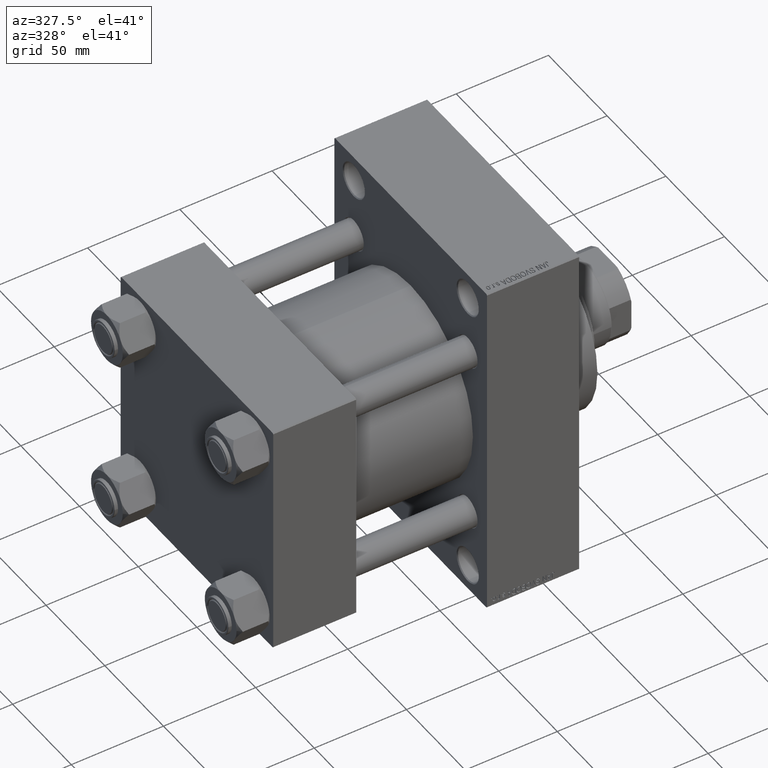
[diagram: clean part render]
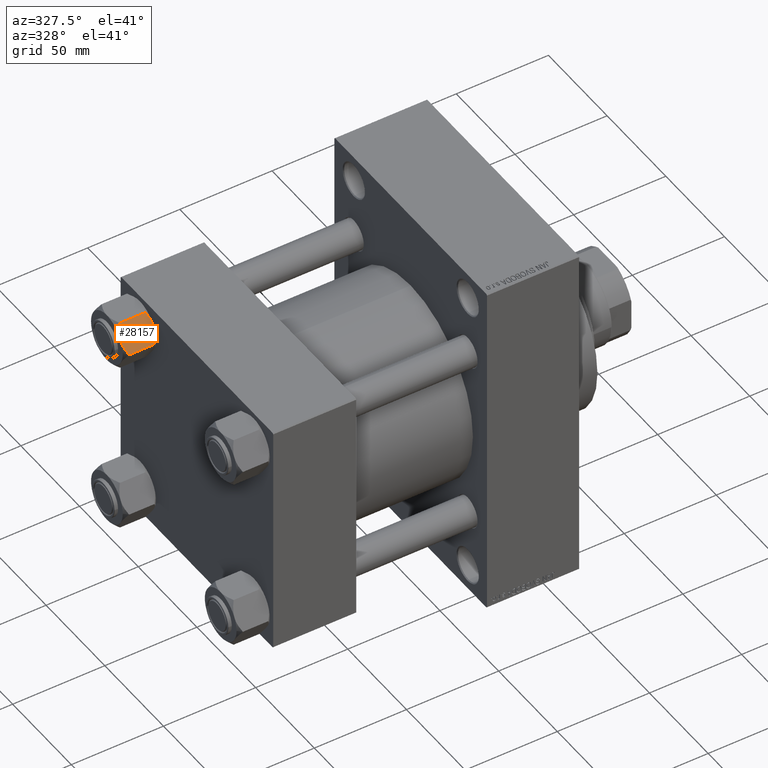
[diagram: same view with one face highlighted and labeled with its STEP entity id]
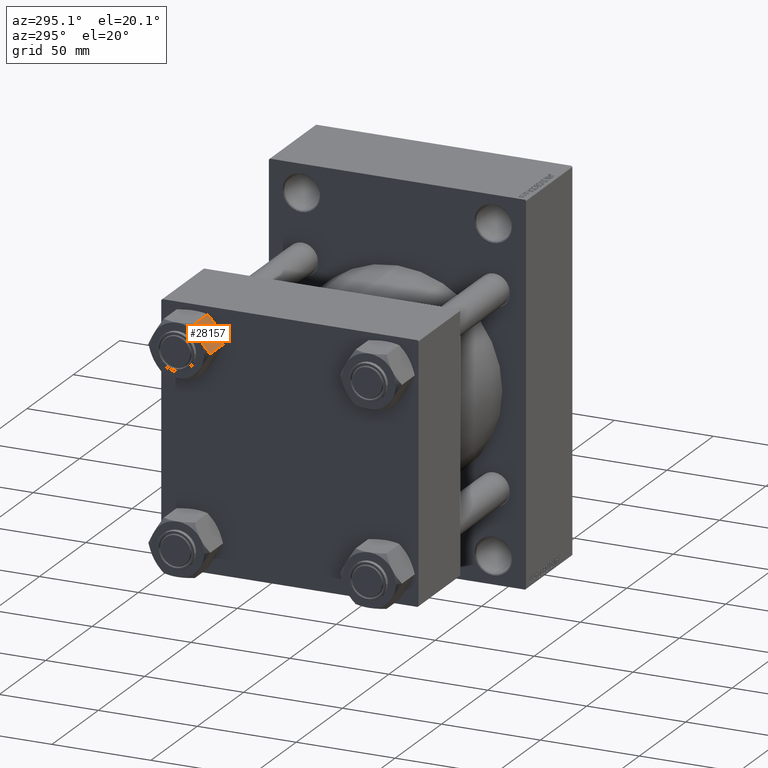
[diagram: same view with one face highlighted and labeled with its STEP entity id]
A machine part, auxiliary view. The second image highlights one B-rep face of the part: STEP entity #28157.
A second angle (auxiliary view) of the same face is appended — the face is thin or edge-on in the first view.
In plain terms, the highlighted planar face has unit normal (0, 0.866, -0.5).
Its self-contained STEP definition (entity closure, byte-faithful):
#1116 = CARTESIAN_POINT ( 'NONE',  ( -7.903528262322674358, -13.36532110482643354, -16.00000000000000000 ) ) ;
#1257 = CARTESIAN_POINT ( 'NONE',  ( -7.809999999999999609, -13.52731680711293727, -16.00000000000000000 ) ) ;
#2025 = VECTOR ( 'NONE', #11066, 999.9999999999998863 ) ;
#2159 = VECTOR ( 'NONE', #10712, 999.9999999999998863 ) ;
#2557 = CARTESIAN_POINT ( 'NONE',  ( -13.02784502466562699, -4.489744118371570281, -17.80281335400755083 ) ) ;
#2600 = VERTEX_POINT ( 'NONE', #19614 ) ;
#2749 = ORIENTED_EDGE ( 'NONE', *, *, #28592, .F. ) ;
#2792 = CARTESIAN_POINT ( 'NONE',  ( -14.30591678195076533, -2.276058899034876681, -17.05261278537718894 ) ) ;
#3045 = CARTESIAN_POINT ( 'NONE',  ( -13.04337073483128329, -4.462852799541069615, -0.2430846701012900901 ) ) ;
#3849 = CARTESIAN_POINT ( 'NONE',  ( -7.809999999999999609, -13.52731680711293727, -1.999999999999998224 ) ) ;
#4181 = FACE_OUTER_BOUND ( 'NONE', #25837, .T. ) ;
#4230 = ORIENTED_EDGE ( 'NONE', *, *, #47625, .F. ) ;
#5432 = CARTESIAN_POINT ( 'NONE',  ( -11.38181071908714692, -7.340759166634859945, -18.00000000000001421 ) ) ;
#6187 = CARTESIAN_POINT ( 'NONE',  ( -14.92760668674625002, -1.199260397376427090, -1.411989271640064825 ) ) ;
#8093 = CARTESIAN_POINT ( 'NONE',  ( -10.38662926516872353, -9.064464007571846338, -17.75691532989871746 ) ) ;
#8648 = EDGE_CURVE ( 'NONE', #12662, #26417, #11246, .T. ) ;
#9735 = CARTESIAN_POINT ( 'NONE',  ( -9.439480280627259745, -10.70497417113492311, -0.7317196846281081024 ) ) ;
#9805 = CARTESIAN_POINT ( 'NONE',  ( -12.04818928091285635, -6.186557640478051567, 9.103910117089220044E-15 ) ) ;
#9899 = VERTEX_POINT ( 'NONE', #37380 ) ;
#9949 = VERTEX_POINT ( 'NONE', #41240 ) ;
#10037 = CARTESIAN_POINT ( 'NONE',  ( -14.31545111198821552, -2.259544954993873311, -0.9142282604026915616 ) ) ;
#10072 = B_SPLINE_CURVE_WITH_KNOTS ( 'NONE', 3,
 ( #36295, #35592, #2557, #31958, #2792, #16796, #13874, #31499 ),
 .UNSPECIFIED., .F., .F.,
 ( 4, 2, 2, 4 ),
 ( 0.007890825462474436100, 0.01181022244528555712, 0.01376992093669111850, 0.01572961942809667987 ),
 .UNSPECIFIED. ) ;
#10131 = ORIENTED_EDGE ( 'NONE', *, *, #8648, .T. ) ;
#10210 = ORIENTED_EDGE ( 'NONE', *, *, #20654, .F. ) ;
#10509 = VERTEX_POINT ( 'NONE', #14538 ) ;
#10712 = DIRECTION ( 'NONE',  ( -0.4999999999999994449, 0.8660254037844390407, 0.000000000000000000 ) ) ;
#10756 = CARTESIAN_POINT ( 'NONE',  ( -7.809999999999999609, -13.52731680711293727, -18.00000000000000000 ) ) ;
#11066 = DIRECTION ( 'NONE',  ( 0.4999999999999994449, -0.8660254037844390407, 0.000000000000000000 ) ) ;
#11185 = VERTEX_POINT ( 'NONE', #36854 ) ;
#11246 = LINE ( 'NONE', #10756, #19742 ) ;
#11575 = VECTOR ( 'NONE', #44607, 999.9999999999998863 ) ;
#12662 = VERTEX_POINT ( 'NONE', #1257 ) ;
#13552 = DIRECTION ( 'NONE',  ( -0.4999999999999994449, 0.8660254037844390407, 0.000000000000000000 ) ) ;
#13874 = CARTESIAN_POINT ( 'NONE',  ( -15.22736220980736199, -0.6800686015852018818, -16.29368822085855584 ) ) ;
#14060 = EDGE_CURVE ( 'NONE', #10509, #19114, #10072, .T. ) ;
#14538 = CARTESIAN_POINT ( 'NONE',  ( -11.71500000000000874, -6.763658403556459753, -18.00000000000000000 ) ) ;
#15172 = CARTESIAN_POINT ( 'NONE',  ( -7.809999999999999609, -13.52731680711293727, -1.999999999999998224 ) ) ;
#16456 = LINE ( 'NONE', #46586, #19819 ) ;
#16686 = VECTOR ( 'NONE', #22891, 1000.000000000000000 ) ;
#16796 = CARTESIAN_POINT ( 'NONE',  ( -14.92394044919338825, -1.205610507090610461, -16.56553707812500065 ) ) ;
#17439 = CARTESIAN_POINT ( 'NONE',  ( -11.71500000000000874, -6.763658403556459753, 0.000000000000000000 ) ) ;
#17915 = CARTESIAN_POINT ( 'NONE',  ( -7.903528262322674358, -13.36532110482643354, -2.000000000000000000 ) ) ;
#18265 = CARTESIAN_POINT ( 'NONE',  ( -7.809999999999999609, -13.52731680711293727, -1.999999999999998224 ) ) ;
#19114 = VERTEX_POINT ( 'NONE', #33147 ) ;
#19614 = CARTESIAN_POINT ( 'NONE',  ( -11.71500000000000874, -6.763658403556459753, 0.000000000000000000 ) ) ;
#19742 = VECTOR ( 'NONE', #36318, 1000.000000000000000 ) ;
#19819 = VECTOR ( 'NONE', #13552, 999.9999999999998863 ) ;
#20654 = EDGE_CURVE ( 'NONE', #40377, #9899, #22417, .T. ) ;
#22417 = LINE ( 'NONE', #3849, #2025 ) ;
#22828 = CARTESIAN_POINT ( 'NONE',  ( -11.04378428799595468, -7.926238119585997666, -17.94910618364700028 ) ) ;
#22891 = DIRECTION ( 'NONE',  ( -0.000000000000000000, -0.000000000000000000, 1.000000000000000000 ) ) ;
#23883 = B_SPLINE_CURVE_WITH_KNOTS ( 'NONE', 3,
 ( #42844, #6187, #10037, #43301, #3045, #25230, #9805, #28609 ),
 .UNSPECIFIED., .F., .F.,
 ( 4, 2, 2, 4 ),
 ( 4.472842641982724416E-07, 0.003945636373369324802, 0.005918230917921887824, 0.007890825462474451713 ),
 .UNSPECIFIED. ) ;
#24655 = ORIENTED_EDGE ( 'NONE', *, *, #32840, .F. ) ;
#25230 = CARTESIAN_POINT ( 'NONE',  ( -12.38621571200405391, -5.601078687526916511, -0.05089381635300645190 ) ) ;
#25503 = B_SPLINE_CURVE_WITH_KNOTS ( 'NONE', 3,
 ( #1116, #30049, #37770, #34842, #8093, #22828, #5432, #38468 ),
 .UNSPECIFIED., .F., .F.,
 ( 4, 2, 2, 4 ),
 ( 4.472842641813524291E-07, 0.003945636373369312659, 0.005918230917921874813, 0.007890825462474436100 ),
 .UNSPECIFIED. ) ;
#25837 = EDGE_LOOP ( 'NONE', ( #2749, #10131, #43968, #24655, #34756, #10210, #30701, #37605, #28401, #4230 ) ) ;
#26417 = VERTEX_POINT ( 'NONE', #18265 ) ;
#28157 = ADVANCED_FACE ( 'NONE', ( #4181 ), #40597, .F. ) ;
#28401 = ORIENTED_EDGE ( 'NONE', *, *, #14060, .F. ) ;
#28592 = EDGE_CURVE ( 'NONE', #12662, #11185, #43754, .T. ) ;
#28609 = CARTESIAN_POINT ( 'NONE',  ( -11.71500000000000874, -6.763658403556459753, 0.000000000000000000 ) ) ;
#29866 = CARTESIAN_POINT ( 'NONE',  ( -15.61999999999999567, 8.023367828467702033E-15, -18.00000000000000000 ) ) ;
#30049 = CARTESIAN_POINT ( 'NONE',  ( -8.502393313253753249, -12.32805640973648664, -16.58801072835993651 ) ) ;
#30701 = ORIENTED_EDGE ( 'NONE', *, *, #39013, .F. ) ;
#31499 = CARTESIAN_POINT ( 'NONE',  ( -15.52647173767732980, -0.1619957022864788043, -16.00000000000000000 ) ) ;
#31902 = CARTESIAN_POINT ( 'NONE',  ( -10.40215497533437805, -9.037572688741340343, -0.1971866459924474513 ) ) ;
#31958 = CARTESIAN_POINT ( 'NONE',  ( -13.99051971937274530, -2.822342635977989289, -17.26828031537188934 ) ) ;
#32376 = CARTESIAN_POINT ( 'NONE',  ( -9.124083218049237942, -11.25125790807803838, -0.9473872146228101698 ) ) ;
#32840 = EDGE_CURVE ( 'NONE', #2600, #9949, #44818, .T. ) ;
#33147 = CARTESIAN_POINT ( 'NONE',  ( -15.52647173767732980, -0.1619957022864788043, -16.00000000000000000 ) ) ;
#34756 = ORIENTED_EDGE ( 'NONE', *, *, #38446, .F. ) ;
#34842 = CARTESIAN_POINT ( 'NONE',  ( -10.06459418565412456, -9.622245127110602425, -17.61639331488794014 ) ) ;
#34960 = EDGE_CURVE ( 'NONE', #9949, #26417, #44360, .T. ) ;
#35592 = CARTESIAN_POINT ( 'NONE',  ( -12.37702203890362540, -5.617002596445037632, -18.00000000000000711 ) ) ;
#36036 = CARTESIAN_POINT ( 'NONE',  ( -7.809999999999999609, -13.52731680711293727, -16.00000000000000000 ) ) ;
#36243 = CARTESIAN_POINT ( 'NONE',  ( -8.202637790192643052, -12.84724820552771085, -1.706311779141444829 ) ) ;
#36295 = CARTESIAN_POINT ( 'NONE',  ( -11.71500000000000874, -6.763658403556459753, -18.00000000000000000 ) ) ;
#36318 = DIRECTION ( 'NONE',  ( -0.000000000000000000, -0.000000000000000000, 1.000000000000000000 ) ) ;
#36854 = CARTESIAN_POINT ( 'NONE',  ( -7.903528262322674358, -13.36532110482643354, -16.00000000000000000 ) ) ;
#36975 = CARTESIAN_POINT ( 'NONE',  ( -7.809999999999999609, -13.52731680711293727, -18.00000000000000000 ) ) ;
#37380 = CARTESIAN_POINT ( 'NONE',  ( -15.52647173767732980, -0.1619957022864788043, -2.000000000000000000 ) ) ;
#37593 = LINE ( 'NONE', #29866, #16686 ) ;
#37605 = ORIENTED_EDGE ( 'NONE', *, *, #41914, .F. ) ;
#37770 = CARTESIAN_POINT ( 'NONE',  ( -9.114548888011787753, -11.26777185211903820, -17.08577173959730899 ) ) ;
#38446 = EDGE_CURVE ( 'NONE', #9899, #2600, #23883, .T. ) ;
#38468 = CARTESIAN_POINT ( 'NONE',  ( -11.71500000000000874, -6.763658403556459753, -18.00000000000000000 ) ) ;
#39013 = EDGE_CURVE ( 'NONE', #45457, #40377, #37593, .T. ) ;
#39612 = CARTESIAN_POINT ( 'NONE',  ( -11.05297796109637787, -7.910314210667872103, 9.086969458144130882E-15 ) ) ;
#39920 = CARTESIAN_POINT ( 'NONE',  ( -15.61999999999999567, 8.023367828467702033E-15, -1.999999999999998224 ) ) ;
#40377 = VERTEX_POINT ( 'NONE', #39920 ) ;
#40597 = PLANE ( 'NONE',  #42183 ) ;
#41240 = CARTESIAN_POINT ( 'NONE',  ( -7.903528262322674358, -13.36532110482643354, -2.000000000000000000 ) ) ;
#41914 = EDGE_CURVE ( 'NONE', #19114, #45457, #16456, .T. ) ;
#42183 = AXIS2_PLACEMENT_3D ( 'NONE', #36975, #44447, #43963 ) ;
#42844 = CARTESIAN_POINT ( 'NONE',  ( -15.52647173767732980, -0.1619957022864788043, -2.000000000000000000 ) ) ;
#43301 = CARTESIAN_POINT ( 'NONE',  ( -13.36540581434588226, -3.905071680002305534, -0.3836066851120543686 ) ) ;
#43754 = LINE ( 'NONE', #36036, #2159 ) ;
#43963 = DIRECTION ( 'NONE',  ( -0.4999999999999993894, 0.8660254037844389297, 0.000000000000000000 ) ) ;
#43968 = ORIENTED_EDGE ( 'NONE', *, *, #34960, .F. ) ;
#44360 = LINE ( 'NONE', #15172, #11575 ) ;
#44447 = DIRECTION ( 'NONE',  ( 0.8660254037844390407, 0.4999999999999994449, 0.000000000000000000 ) ) ;
#44607 = DIRECTION ( 'NONE',  ( 0.4999999999999994449, -0.8660254037844390407, 0.000000000000000000 ) ) ;
#44818 = B_SPLINE_CURVE_WITH_KNOTS ( 'NONE', 3,
 ( #17439, #39612, #31902, #9735, #32376, #47096, #36243, #17915 ),
 .UNSPECIFIED., .F., .F.,
 ( 4, 2, 2, 4 ),
 ( 0.007890825462474451713, 0.01181022244528557794, 0.01376992093669113758, 0.01572961942809669722 ),
 .UNSPECIFIED. ) ;
#45455 = CARTESIAN_POINT ( 'NONE',  ( -15.61999999999999567, 8.023367828467702033E-15, -16.00000000000000000 ) ) ;
#45457 = VERTEX_POINT ( 'NONE', #45455 ) ;
#46586 = CARTESIAN_POINT ( 'NONE',  ( -7.809999999999999609, -13.52731680711293727, -16.00000000000000000 ) ) ;
#47096 = CARTESIAN_POINT ( 'NONE',  ( -8.506059550806618574, -12.32170630002230816, -1.434462921875002461 ) ) ;
#47625 = EDGE_CURVE ( 'NONE', #11185, #10509, #25503, .T. ) ;